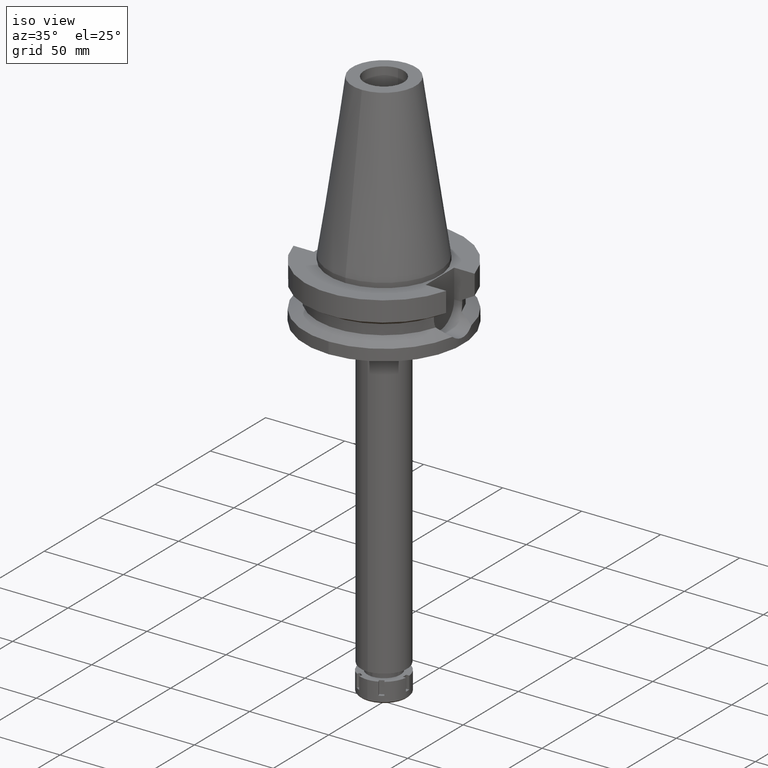
[diagram: clean part render]
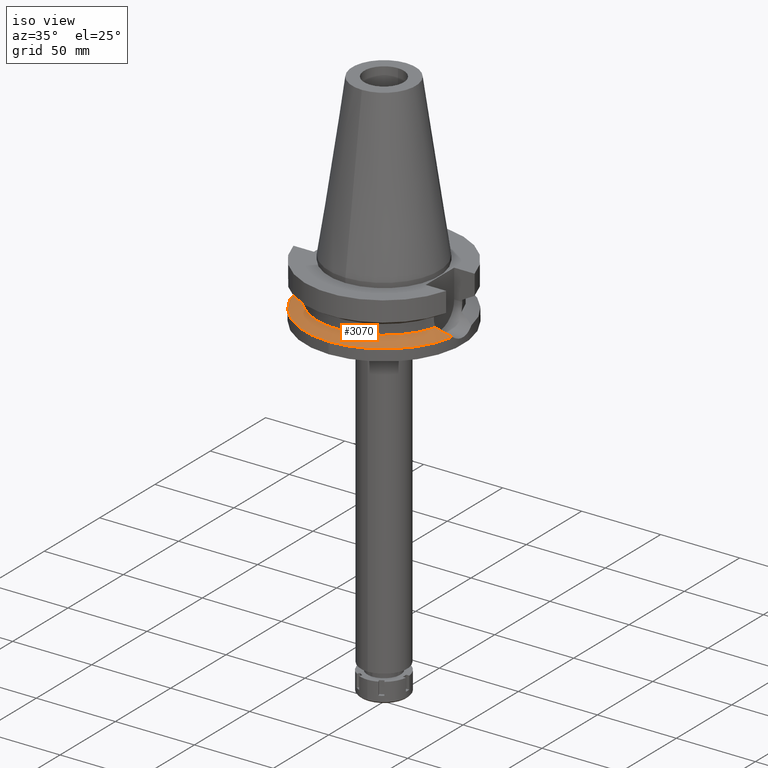
[diagram: same view with one face highlighted and labeled with its STEP entity id]
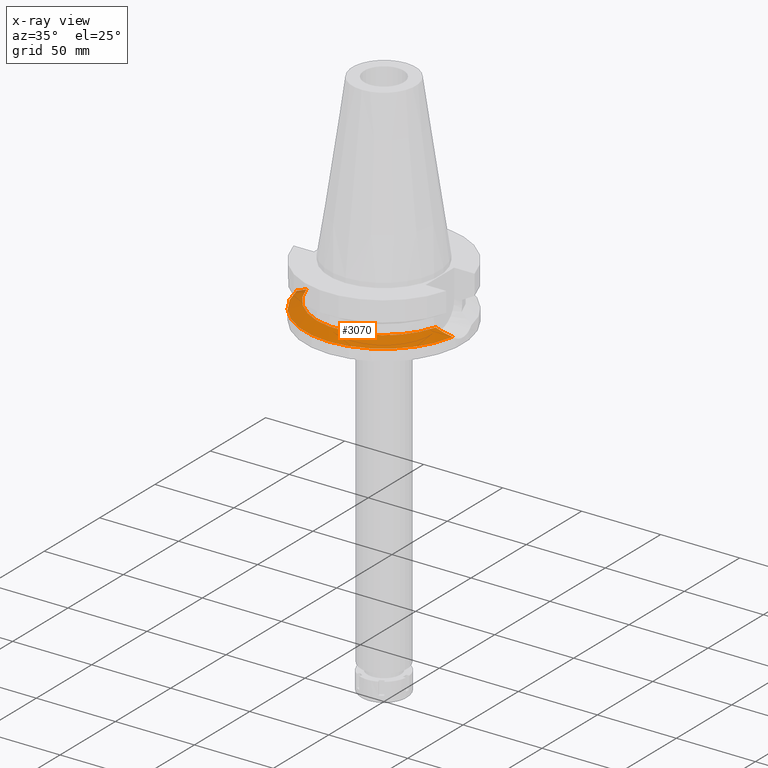
[diagram: x-ray of the same camera — body ghosted, the highlighted face saturated]
A machine part, iso view. The second image highlights one B-rep face of the part: STEP entity #3070.
The next image is the same camera in x-ray: the body ghosted, the highlighted face saturated — about 1% of this face is hidden behind the body in this view.
In plain terms, the highlighted conical surface has half-angle 60 deg.
Its self-contained STEP definition (entity closure, byte-faithful):
#20 = CARTESIAN_POINT ( 'NONE',  ( -49.26250064874000145, -8.556052234130000045, -30.73730776426999967 ) ) ;
#24 = EDGE_CURVE ( 'NONE', #985, #1952, #591, .T. ) ;
#26 = CARTESIAN_POINT ( 'NONE',  ( 0.0000000000000000000, 0.0000000000000000000, -30.73730776426999967 ) ) ;
#111 = CARTESIAN_POINT ( 'NONE',  ( 48.17620893163969242, -9.179438061360723822, -30.18097622355566756 ) ) ;
#126 = CARTESIAN_POINT ( 'NONE',  ( 43.72518725199951461, -10.94125182796566875, -27.89282766583700734 ) ) ;
#166 = VERTEX_POINT ( 'NONE', #2362 ) ;
#184 = DIRECTION ( 'NONE',  ( 0.0000000000000000000, -1.000000000000000000, 0.0000000000000000000 ) ) ;
#278 = ORIENTED_EDGE ( 'NONE', *, *, #2514, .F. ) ;
#289 = CARTESIAN_POINT ( 'NONE',  ( -46.08382338621549223, -10.09151051151560807, -29.10653605819426204 ) ) ;
#408 = CARTESIAN_POINT ( 'NONE',  ( 1.598721155459999804E-14, -50.00000000000000000, -30.73730776426999967 ) ) ;
#431 = CARTESIAN_POINT ( 'NONE',  ( 45.21525101835353411, -10.42733674623276308, -28.65988261102160095 ) ) ;
#539 = DIRECTION ( 'NONE',  ( 0.0000000000000000000, 0.0000000000000000000, -1.000000000000000000 ) ) ;
#552 = CARTESIAN_POINT ( 'NONE',  ( -42.59175597196806962, -11.32101742794471555, -27.30905430218426488 ) ) ;
#591 = B_SPLINE_CURVE_WITH_KNOTS ( 'NONE', 3,
 ( #20, #1720, #2485, #1377, #2778, #1664, #289, #1677, #1359, #2819, #3351, #2836, #2503, #552, #1087 ),
 .UNSPECIFIED., .F., .F.,
 ( 4, 2, 2, 1, 1, 1, 2, 2, 4 ),
 ( 0.0000000000000000000, 0.2499999999999993339, 0.3749999999999990008, 0.4374999999999988343, 0.4687499999999985567, 0.4843749999999989453, 0.4921874999999994449, 0.5000000000000000000, 1.000000000000000000 ),
 .UNSPECIFIED. ) ;
#593 = EDGE_CURVE ( 'NONE', #166, #2046, #1692, .T. ) ;
#676 = CARTESIAN_POINT ( 'NONE',  ( 45.42836448402130856, -10.34727062668379816, -28.76949299046633612 ) ) ;
#689 = FACE_OUTER_BOUND ( 'NONE', #793, .T. ) ;
#711 = CARTESIAN_POINT ( 'NONE',  ( 0.0000000000000000000, 0.0000000000000000000, -30.73730776426999967 ) ) ;
#784 = CARTESIAN_POINT ( 'NONE',  ( -40.85052569294000335, -11.72538061688000077, -26.40718074535000426 ) ) ;
#793 = EDGE_LOOP ( 'NONE', ( #278, #1523, #2476, #2418, #1181 ) ) ;
#909 = CARTESIAN_POINT ( 'NONE',  ( 45.47067438729362721, -10.33121140829755014, -28.79125341097005020 ) ) ;
#926 = CARTESIAN_POINT ( 'NONE',  ( 40.85052569294000335, -11.72538061688000077, -26.40718074535000426 ) ) ;
#965 = CARTESIAN_POINT ( 'NONE',  ( 42.55961044007622718, -11.29690148821436324, -27.29161076120396601 ) ) ;
#985 = VERTEX_POINT ( 'NONE', #3079 ) ;
#1003 = AXIS2_PLACEMENT_3D ( 'NONE', #26, #539, #1881 ) ;
#1048 = AXIS2_PLACEMENT_3D ( 'NONE', #1614, #3334, #2490 ) ;
#1087 = CARTESIAN_POINT ( 'NONE',  ( -40.85052569294000335, -11.72538061688000077, -26.40718074535000426 ) ) ;
#1181 = ORIENTED_EDGE ( 'NONE', *, *, #24, .F. ) ;
#1359 = CARTESIAN_POINT ( 'NONE',  ( -45.62227171033741513, -10.27315904380833445, -28.86920540324841156 ) ) ;
#1377 = CARTESIAN_POINT ( 'NONE',  ( -47.17344470773885945, -9.625120593407077152, -29.66633800479508665 ) ) ;
#1450 = CARTESIAN_POINT ( 'NONE',  ( 44.10079766170406401, -10.81942485573362589, -28.08634427947545831 ) ) ;
#1470 = CIRCLE ( 'NONE', #3107, 50.00000000000000000 ) ;
#1523 = ORIENTED_EDGE ( 'NONE', *, *, #1536, .F. ) ;
#1536 = EDGE_CURVE ( 'NONE', #2046, #2209, #2341, .T. ) ;
#1550 = DIRECTION ( 'NONE',  ( 0.0000000000000000000, -1.000000000000000000, 0.0000000000000000000 ) ) ;
#1588 = EDGE_CURVE ( 'NONE', #1952, #166, #1699, .T. ) ;
#1614 = CARTESIAN_POINT ( 'NONE',  ( 0.0000000000000000000, 0.0000000000000000000, -26.40718074535000426 ) ) ;
#1664 = CARTESIAN_POINT ( 'NONE',  ( -46.34070438263690050, -9.985499868670949297, -29.23856638649671780 ) ) ;
#1677 = CARTESIAN_POINT ( 'NONE',  ( -45.77726607202445308, -10.21298936447496786, -28.94891258279916713 ) ) ;
#1692 = B_SPLINE_CURVE_WITH_KNOTS ( 'NONE', 3,
 ( #926, #2297, #965, #126, #1450, #3159, #2058, #431, #2334, #676, #909, #2015, #3453, #111, #1748 ),
 .UNSPECIFIED., .F., .F.,
 ( 4, 2, 2, 1, 1, 1, 2, 2, 4 ),
 ( 0.0000000000000000000, 0.2500000000000260902, 0.3750000000000391354, 0.4375000000000464073, 0.4687500000000488498, 0.4843750000000500155, 0.4921875000000505151, 0.5000000000000510703, 1.000000000000000000 ),
 .UNSPECIFIED. ) ;
#1699 = CIRCLE ( 'NONE', #1048, 42.50000000000000000 ) ;
#1720 = CARTESIAN_POINT ( 'NONE',  ( -48.71343382210604034, -8.871142989713554527, -30.45610963967154916 ) ) ;
#1748 = CARTESIAN_POINT ( 'NONE',  ( 49.26250064874000145, -8.556052234130000045, -30.73730776426999967 ) ) ;
#1801 = DIRECTION ( 'NONE',  ( 0.0000000000000000000, 0.0000000000000000000, -1.000000000000000000 ) ) ;
#1881 = DIRECTION ( 'NONE',  ( 0.9852500129747439050, -0.1711210446826074982, 0.0000000000000000000 ) ) ;
#1952 = VERTEX_POINT ( 'NONE', #784 ) ;
#2015 = CARTESIAN_POINT ( 'NONE',  ( 45.49074721008668831, -10.32356866410594165, -28.80157697878818723 ) ) ;
#2046 = VERTEX_POINT ( 'NONE', #3116 ) ;
#2058 = CARTESIAN_POINT ( 'NONE',  ( 44.91201869858088003, -10.53867922637662424, -28.50390183750177897 ) ) ;
#2209 = VERTEX_POINT ( 'NONE', #408 ) ;
#2297 = CARTESIAN_POINT ( 'NONE',  ( 41.73089845504787831, -11.52093302495673299, -26.86317150306423684 ) ) ;
#2334 = CARTESIAN_POINT ( 'NONE',  ( 45.36474827917994901, -10.37133753830157445, -28.73677421841125579 ) ) ;
#2341 = CIRCLE ( 'NONE', #1003, 50.00000000000000000 ) ;
#2362 = CARTESIAN_POINT ( 'NONE',  ( 40.85052569294000335, -11.72538061688000077, -26.40718074535000426 ) ) ;
#2418 = ORIENTED_EDGE ( 'NONE', *, *, #1588, .F. ) ;
#2476 = ORIENTED_EDGE ( 'NONE', *, *, #593, .F. ) ;
#2485 = CARTESIAN_POINT ( 'NONE',  ( -48.12253648352652391, -9.179093691888821738, -30.15336474845443959 ) ) ;
#2490 = DIRECTION ( 'NONE',  ( -0.9611888398338002126, -0.2758913086325000541, 0.0000000000000000000 ) ) ;
#2503 = CARTESIAN_POINT ( 'NONE',  ( -44.13029192285117119, -10.84087599463315144, -28.10183214339331670 ) ) ;
#2514 = EDGE_CURVE ( 'NONE', #2209, #985, #1470, .T. ) ;
#2778 = CARTESIAN_POINT ( 'NONE',  ( -46.84662315448991166, -9.771141394939302671, -29.49851789864960239 ) ) ;
#2819 = CARTESIAN_POINT ( 'NONE',  ( -45.55547790434477662, -10.29882184488126207, -28.83485348917206537 ) ) ;
#2821 = AXIS2_PLACEMENT_3D ( 'NONE', #3524, #1801, #184 ) ;
#2836 = CARTESIAN_POINT ( 'NONE',  ( -45.48700607094465198, -10.32500488758969936, -28.79963739723387661 ) ) ;
#2951 = DIRECTION ( 'NONE',  ( 0.0000000000000000000, 0.0000000000000000000, -1.000000000000000000 ) ) ;
#3070 = ADVANCED_FACE ( 'NONE', ( #689 ), #3292, .T. ) ;
#3079 = CARTESIAN_POINT ( 'NONE',  ( -49.26250064874000145, -8.556052234130000045, -30.73730776426999967 ) ) ;
#3107 = AXIS2_PLACEMENT_3D ( 'NONE', #711, #2951, #1550 ) ;
#3116 = CARTESIAN_POINT ( 'NONE',  ( 49.26250064874000145, -8.556052234130000045, -30.73730776426999967 ) ) ;
#3159 = CARTESIAN_POINT ( 'NONE',  ( 44.64484048485608270, -10.63289360823876173, -28.36641566561578642 ) ) ;
#3292 = CONICAL_SURFACE ( 'NONE', #2821, 46.25000000000000000, 1.047197551196400456 ) ;
#3334 = DIRECTION ( 'NONE',  ( 0.0000000000000000000, 0.0000000000000000000, 1.000000000000000000 ) ) ;
#3351 = CARTESIAN_POINT ( 'NONE',  ( -45.51086700013105002, -10.31590254213172386, -28.81190963689105544 ) ) ;
#3453 = CARTESIAN_POINT ( 'NONE',  ( 46.92631969560405736, -9.775084137002377105, -29.53989576958953123 ) ) ;
#3524 = CARTESIAN_POINT ( 'NONE',  ( 0.0000000000000000000, 0.0000000000000000000, -28.57224425480999841 ) ) ;